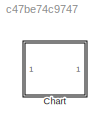
MODEL slx_c47be74c9747
KIND model
CONFIG AbsTol = auto
CONFIG FixedStep = 0.1
CONFIG MaxStep = auto
CONFIG MinStep = auto
CONFIG RelTol = 1e-3
CONFIG SampleTimeConstraint = Unconstrained
CONFIG Solver = FixedStepDiscrete
CONFIG SolverMode = Auto
CONFIG SolverName = FixedStepDiscrete
CONFIG StartTime = 0.0
CONFIG StopTime = inf
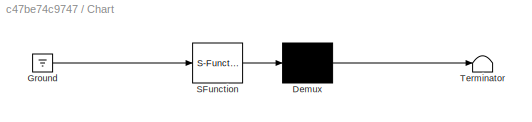
BLOCK [SubSystem] Chart
  ErrorFcn = Stateflow.Translate.translate
  PermitHierarchicalResolution = ExplicitOnly
  Ports = []
  RequestExecContextInheritance = off
  SFBlockType = Chart
  TreatAsAtomicUnit = on
  Variant = off
BLOCK [Demux] Chart/ Demux 
  Outputs = 1
  Ports = [1, 1]
BLOCK [Ground] Chart/ Ground 
BLOCK [S-Function] Chart/ SFunction 
  EnableBusSupport = on
  FunctionName = sf_sfun
  PortCounts = [1 1]
  Ports = [1, 1]
  SFunctionDeploymentMode = off
  Tag = Stateflow S-Function ball 3
BLOCK [Terminator] Chart/ Terminator 
CHART Chart states=8 transitions=65
  STATE_LABEL 'a7\nentry: a=uint8(7*rand(1));'
  STATE_LABEL 'a6\nentry: a=uint8(7*rand(1));'
  STATE_LABEL 'a0\nentry: x=uint8(7*rand(1));'
  STATE_LABEL 'a5\nentry: s=uint8(7*rand(1));'
  STATE_LABEL 'a1\nentry: y=uint8(7*rand(1));\n'
  STATE_LABEL 'a4\nentry: s=uint8(7*rand(1));'
  STATE_LABEL 'a2\nentry: z=uint8(7*rand(1));'
  STATE_LABEL 'a3\nentry: a=uint8(7*rand(1));'
